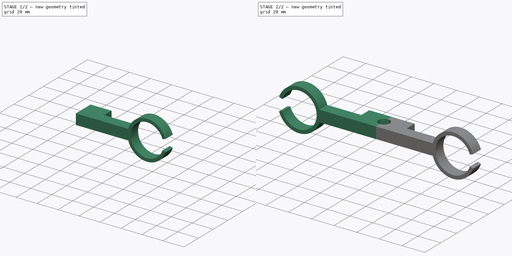
[diagram: build sequence overview — one tinted view per stage of 2, left to right]
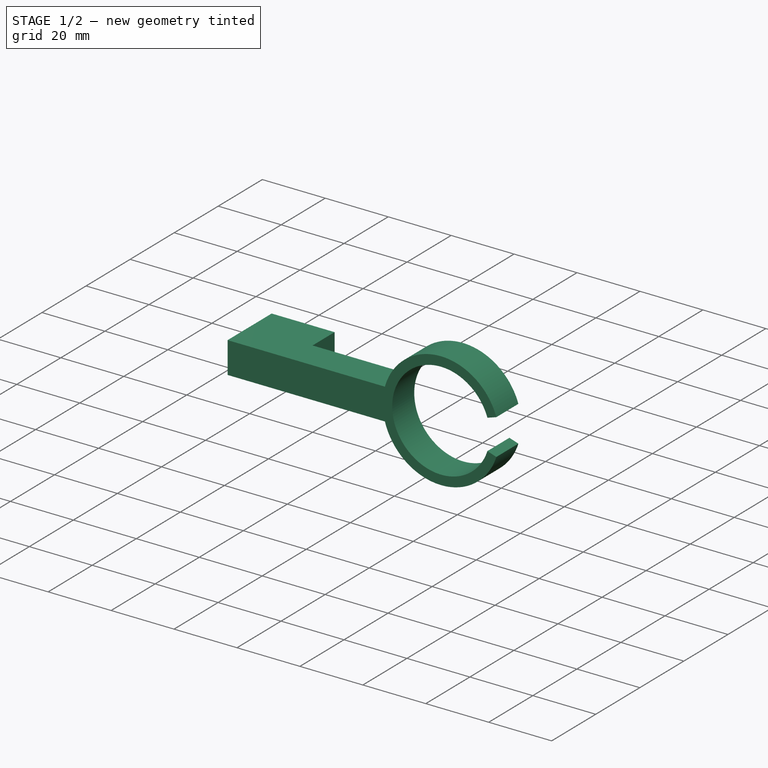
[diagram: stage 1 of 2 — iso view after this stage's code; geometry added in this stage tinted green]
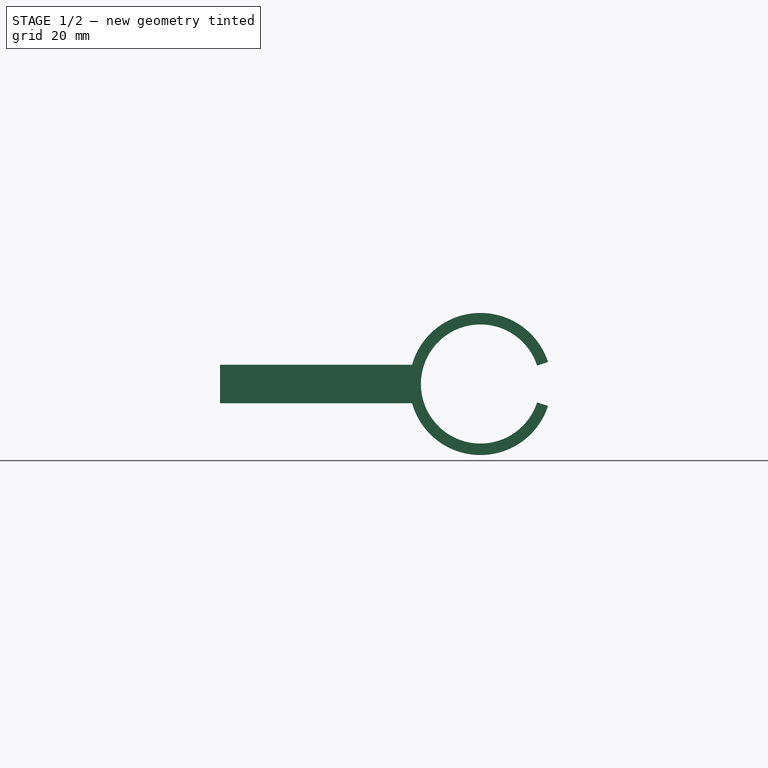
[diagram: stage 1 of 2 — front view after this stage's code; geometry added in this stage tinted green]
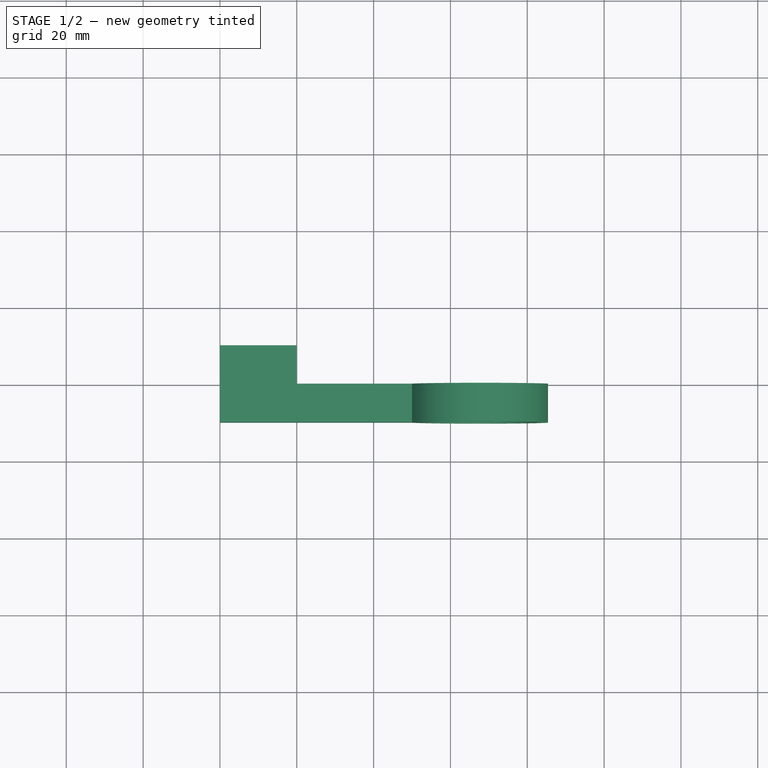
[diagram: stage 1 of 2 — top view after this stage's code; geometry added in this stage tinted green]
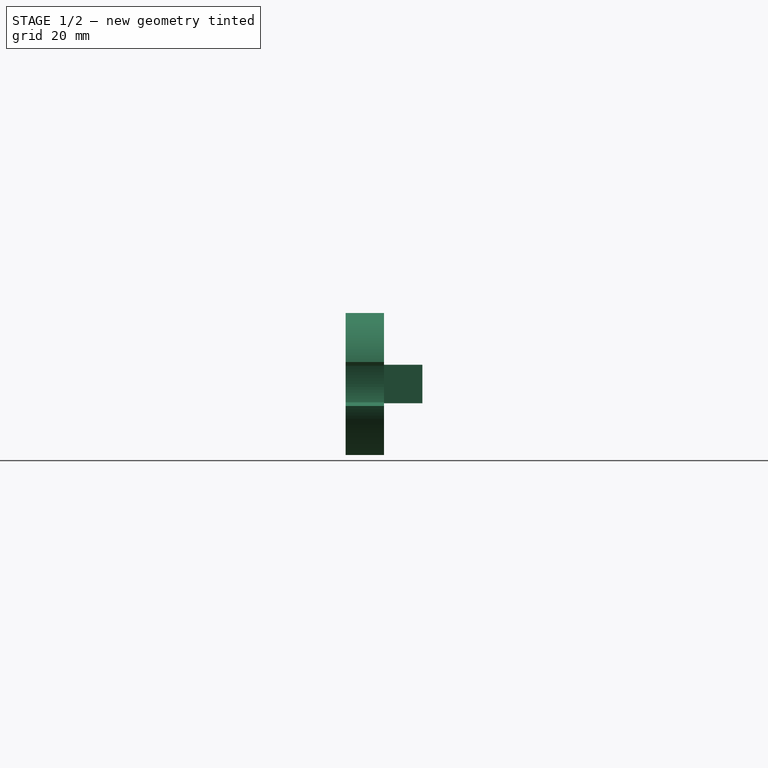
[diagram: stage 1 of 2 — right view after this stage's code; geometry added in this stage tinted green]
FCSTD DOCUMENT  (FreeCAD 0.19R24291 (Git))
Label: 32mm-dual-motor-holder
License: All rights reserved
LicenseURL: http://en.wikipedia.org/wiki/All_rights_reserved
objects: Sketcher::SketchObject×3, PartDesign::Pad×2, Spreadsheet::Sheet×1, PartDesign::Mirrored×1, PartDesign::Pocket×1, PartDesign::Body×1, App::Part×1
note: 11 computed .brp shape members not serialized (recipe doc carries the construction recipe); baked Part::Feature solids carry a one-line shape summary decoded from their .brp

FEATURE [Sketcher::SketchObject] Sketch
  FullyConstrained = true
  MapMode = 5
  Placement = pos=(0,0,0) rot=(1,0,0;1.5708rad)
  Support = -> [XZ_Plane001]
  expr: Constraints[27] = Spreadsheet.holder_percent_overlap * 180
  expr: Constraints[26] = 180 * Spreadsheet.holder_percent_overlap
  expr: Constraints[21] = Spreadsheet.center_bar_length / 2
  expr: Constraints[20] = Spreadsheet.motor_holder_thicc
  expr: Constraints[19] = Spreadsheet.motor_dia - Spreadsheet.motor_dia_offset
  expr: Constraints[18] = Spreadsheet.center_bar_thicc
  sketch-geometry (10):
    g0: LineSegment StartX=0 StartY=5 StartZ=0 EndX=50 EndY=5 EndZ=0
    g1: LineSegment StartX=0 StartY=-5 StartZ=0 EndX=50 EndY=-5 EndZ=0
    g2: LineSegment StartX=0 StartY=5 StartZ=0 EndX=0 EndY=-5 EndZ=0
    g3: ArcOfCircle CenterX=67.8115 CenterY=0 CenterZ=0 NormalX=0 NormalY=0 NormalZ=1 AngleXU=0 Radius=18.5 StartAngle=0.314159 EndAngle=2.86792
    g4: ArcOfCircle CenterX=67.8115 CenterY=0 CenterZ=0 NormalX=0 NormalY=0 NormalZ=1 AngleXU=0 Radius=18.5 StartAngle=3.41527 EndAngle=5.96903
    g5: LineSegment StartX=85.4061 StartY=5.71681 StartZ=0 EndX=82.5529 EndY=4.78976 EndZ=0
    g6: LineSegment StartX=85.4061 StartY=-5.71681 StartZ=0 EndX=82.5529 EndY=-4.78976 EndZ=0
    g7: ArcOfCircle CenterX=67.8115 CenterY=0 CenterZ=0 NormalX=0 NormalY=0 NormalZ=1 AngleXU=0 Radius=15.5 StartAngle=0.314159 EndAngle=5.96903
    g8: LineSegment StartX=67.8115 StartY=0 StartZ=0 EndX=82.5529 EndY=4.78976 EndZ=0
    g9: LineSegment StartX=67.8115 StartY=0 StartZ=0 EndX=82.5529 EndY=-4.78976 EndZ=0
  constraints (28):
    c: PointOnObject(g0,g-2)
    c: Horizontal(g0)
    c: Horizontal(g1)
    c: Coincident(g2,g0)
    c: Coincident(g2,g1)
    c: Symmetric(g0,g1,g-1)
    c: Equal(g0,g1)
    c: PointOnObject(g3,g-1)
    c: Coincident(g3,g0)
    c: Coincident(g4,g3)
    c: Coincident(g4,g1)
    c: Coincident(g5,g3)
    c: Coincident(g6,g4)
    c: Perpendicular(g3,g5)
    c: Perpendicular(g4,g6)
    c: Coincident(g7,g3)
    c: Coincident(g7,g5)
    c: Coincident(g7,g6)
    c: DistanceY(g2,g2) = 10
    c: Diameter(g7) = 31
    c: Distance(g5) = 3
    c: DistanceX(g0,g0) = 50
    c: Coincident(g8,g3)
    c: Coincident(g8,g5)
    c: Coincident(g9,g3)
    c: Coincident(g9,g6)
    c: Angle(g8,g-1) = 2.82743
    c: Angle(g-1,g9) = 2.82743
FEATURE [Spreadsheet::Sheet] Spreadsheet
  cells = A1=variable; B1=value; A2=center_bar_thicc; B2(center_bar_thicc)=10; A3=motor_dia; B3(motor_dia)=32; A4=motor_dia_offset; B4(motor_dia_offset)=1; A5=motor_holder_thicc; B5(motor_holder_thicc)=3; A6=center_bar_length; B6(center_bar_length)=100; A7=holder_percent_overlap; B7(holder_percent_overlap)=0.9; C7=(as a decimal; value of 1 implies completely closed clamp whereas 0.9 means 10% open); A8=center_bar_depth; B8(center_bar_depth)=20; A9=motor_holder_depth; B9(motor_holder_depth)=10; A10=mount_hole_dia; B10(mount_hole_dia)=10
FEATURE [PartDesign::Pad] Pad
  Direction = (1,1,1)
  Length = 10
  Length2 = 100
  Placement = pos=(0,0,0) rot=(1,0,0;1.5708rad)
  Profile = -> Sketch
  Type = 0
  expr: Length = Spreadsheet.motor_holder_depth
FEATURE [Sketcher::SketchObject] Sketch001
  FullyConstrained = true
  MapMode = 5
  Placement = pos=(0,0,0) rot=(1,0,0;1.5708rad)
  Support = -> [XZ_Plane001]
  expr: Constraints[9] = Spreadsheet.center_bar_thicc
  sketch-geometry (5):
    g0: LineSegment StartX=0 StartY=5 StartZ=0 EndX=20 EndY=5 EndZ=0
    g1: LineSegment StartX=20 StartY=5 StartZ=0 EndX=20 EndY=-5 EndZ=0
    g2: LineSegment StartX=20 StartY=-5 StartZ=0 EndX=0 EndY=-5 EndZ=0
    g3: LineSegment StartX=0 StartY=-5 StartZ=0 EndX=0 EndY=5 EndZ=0
    g4: GeomPoint X=0 Y=0 Z=0
  constraints (12):
    c: Coincident(g0,g1)
    c: Coincident(g1,g2)
    c: Coincident(g2,g3)
    c: Coincident(g3,g0)
    c: Horizontal(g0)
    c: Horizontal(g2)
    c: Vertical(g1)
    c: Vertical(g3)
    c: DistanceX(g0,g0) = 20
    c: DistanceY(g3,g3) = 10
    c: Symmetric(g0,g2,g4)
    c: Coincident(g4,g-1)
FEATURE [PartDesign::Pad] Pad001
  BaseFeature = -> Pad
  Direction = (1,1,1)
  Length = 10
  Length2 = 100
  Placement = pos=(0,0,0) rot=(1,0,0;1.5708rad)
  Profile = -> Sketch001
  Reversed = true
  Type = 0
  expr: Length = Spreadsheet.center_bar_depth - Spreadsheet.motor_holder_depth
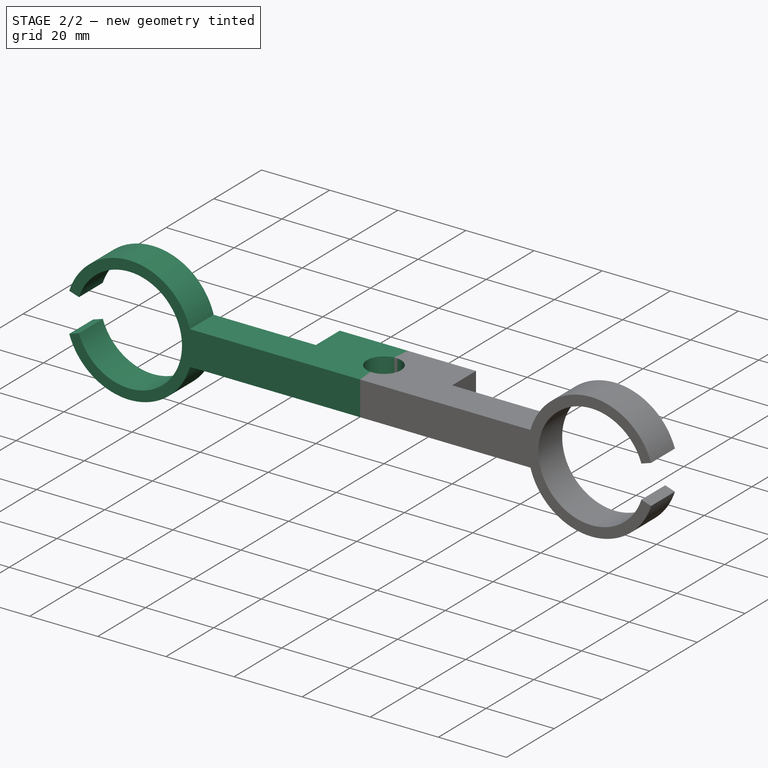
[diagram: stage 2 of 2 — iso view after this stage's code; geometry added in this stage tinted green]
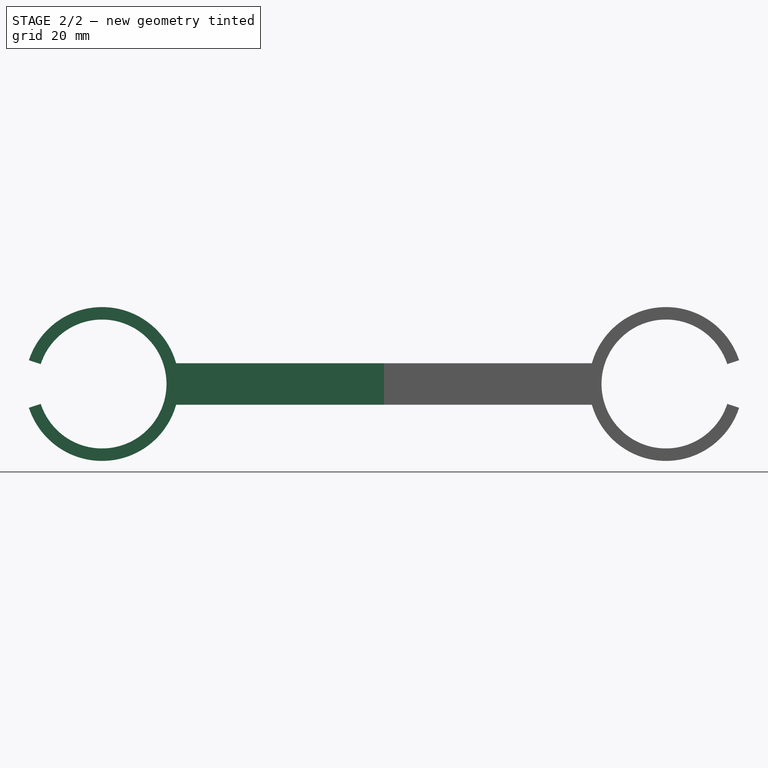
[diagram: stage 2 of 2 — front view after this stage's code; geometry added in this stage tinted green]
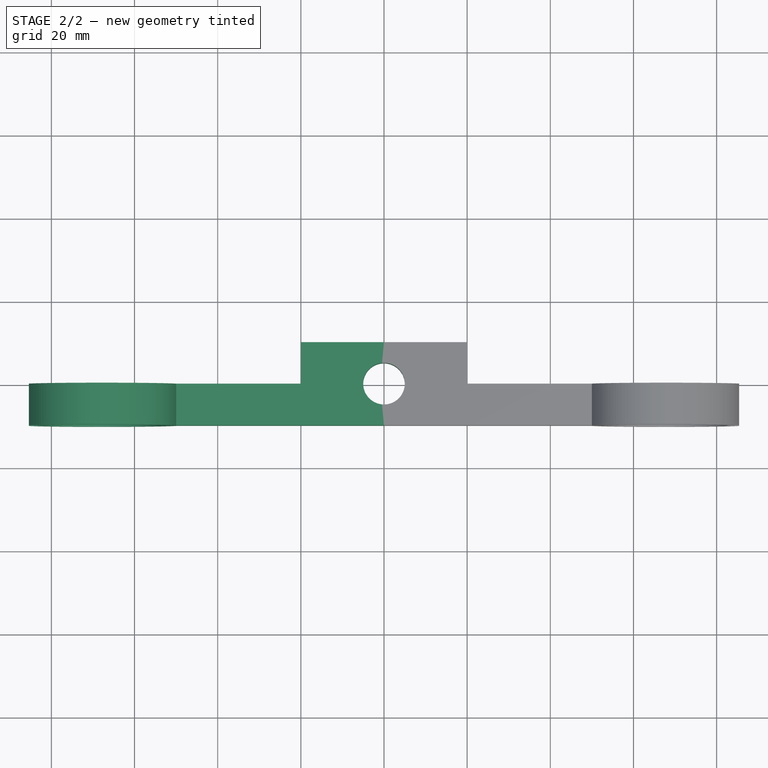
[diagram: stage 2 of 2 — top view after this stage's code; geometry added in this stage tinted green]
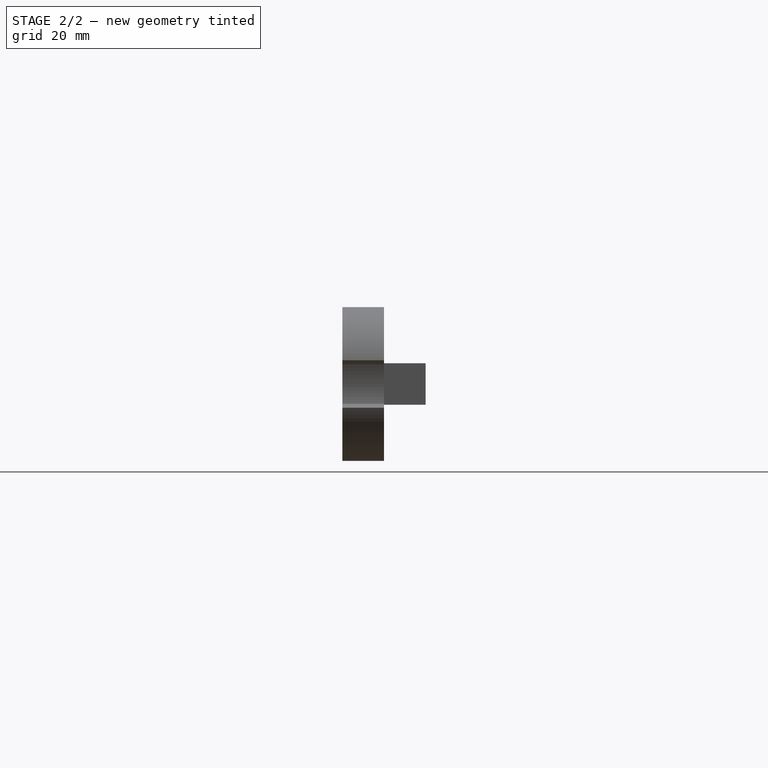
[diagram: stage 2 of 2 — right view after this stage's code; geometry added in this stage tinted green]
FEATURE [PartDesign::Mirrored] Mirrored
  BaseFeature = -> Pad001
  MirrorPlane = -> Sketch [V_Axis]
  Originals = -> [Pad,Pad001]
  Placement = pos=(0,0,0) rot=(1,0,0;1.5708rad)
FEATURE [Sketcher::SketchObject] Sketch002
  FullyConstrained = true
  MapMode = 5
  Support = -> [XY_Plane001]
  expr: Constraints[1] = Spreadsheet.mount_hole_dia
  sketch-geometry (1):
    g0: Circle CenterX=0 CenterY=0 CenterZ=0 NormalX=0 NormalY=0 NormalZ=1 AngleXU=0 Radius=5
  constraints (2):
    c: Coincident(g0,g-1)
    c: Diameter(g0) = 10
FEATURE [PartDesign::Pocket] Pocket
  BaseFeature = -> Mirrored
  Length = 5
  Length2 = 100
  Midplane = true
  Placement = pos=(0,0,0) rot=(1,0,0;1.5708rad)
  Profile = -> Sketch002
  Type = 1
FEATURE [PartDesign::Body] Body
  Group = -> [Sketch,Pad,Sketch001,Pad001,Mirrored,Sketch002,Pocket]
  Origin = -> Origin001
  Tip = -> Pocket
FEATURE [App::Part] Part
  Group = -> [Body]
  Origin = -> Origin
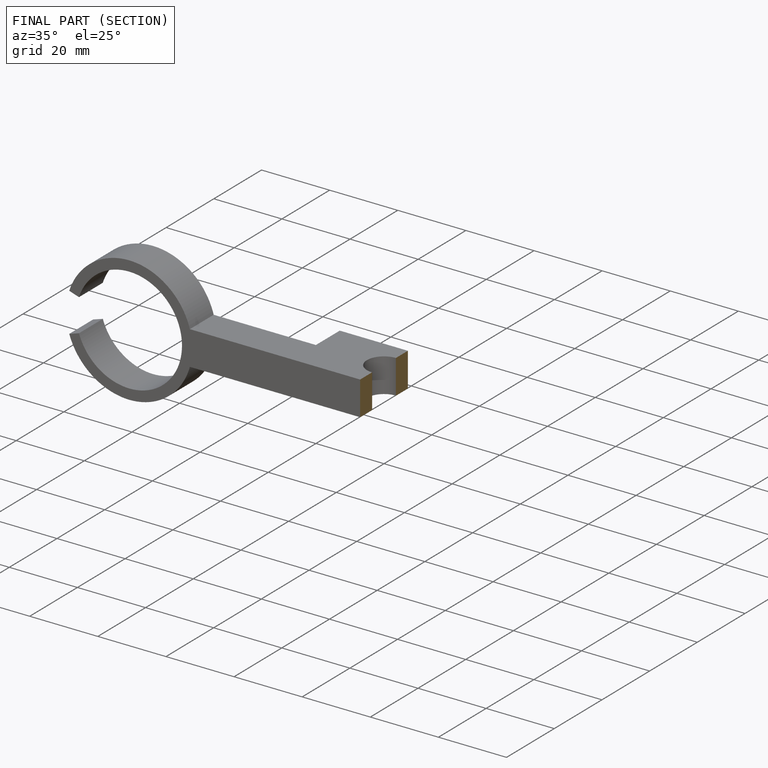
[diagram: finished part — half-section view (interior)]
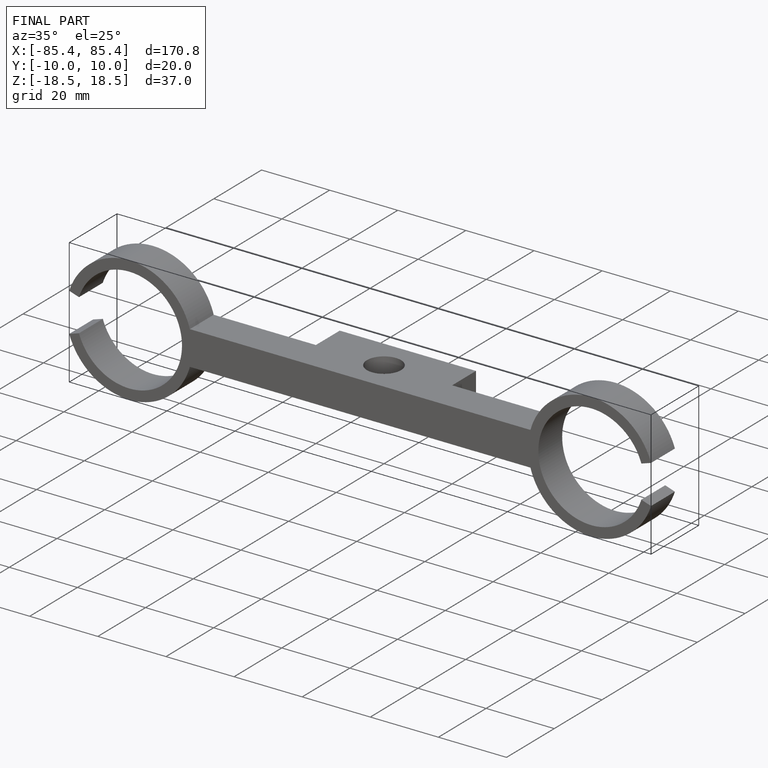
[diagram: finished part — iso view with bounding-box wireframe]
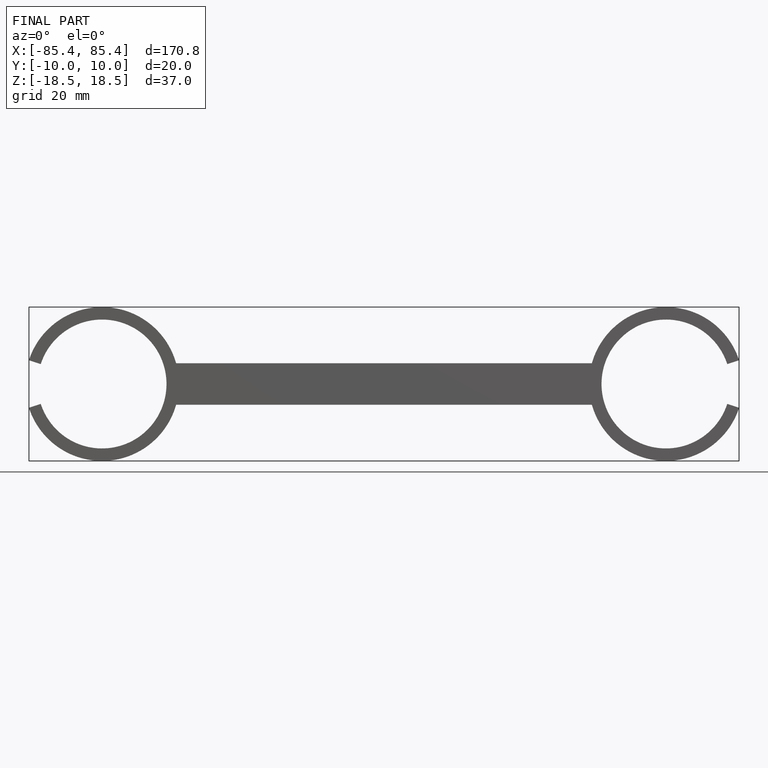
[diagram: finished part — front view with bounding-box wireframe]
